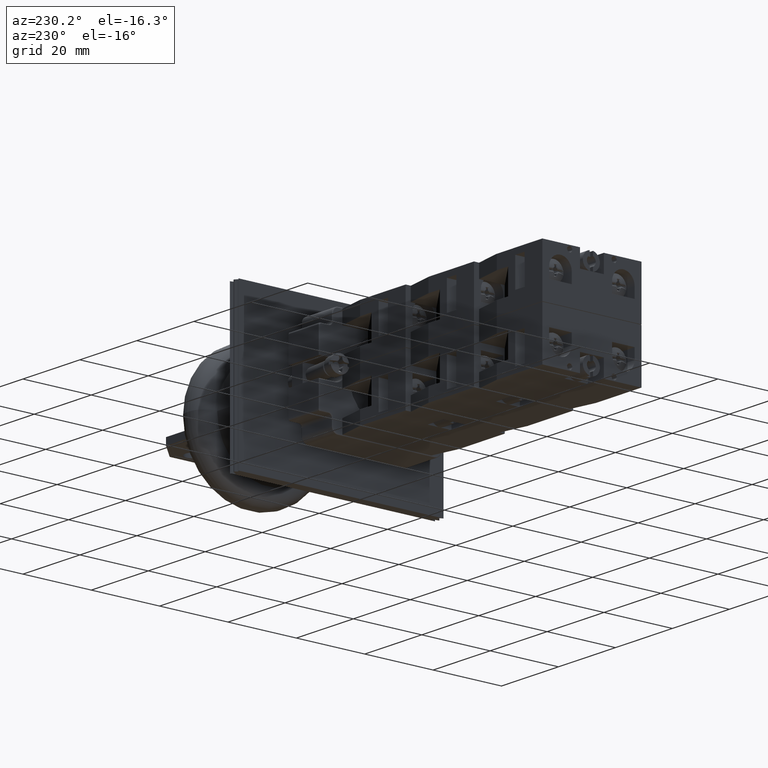
[diagram: clean part render]
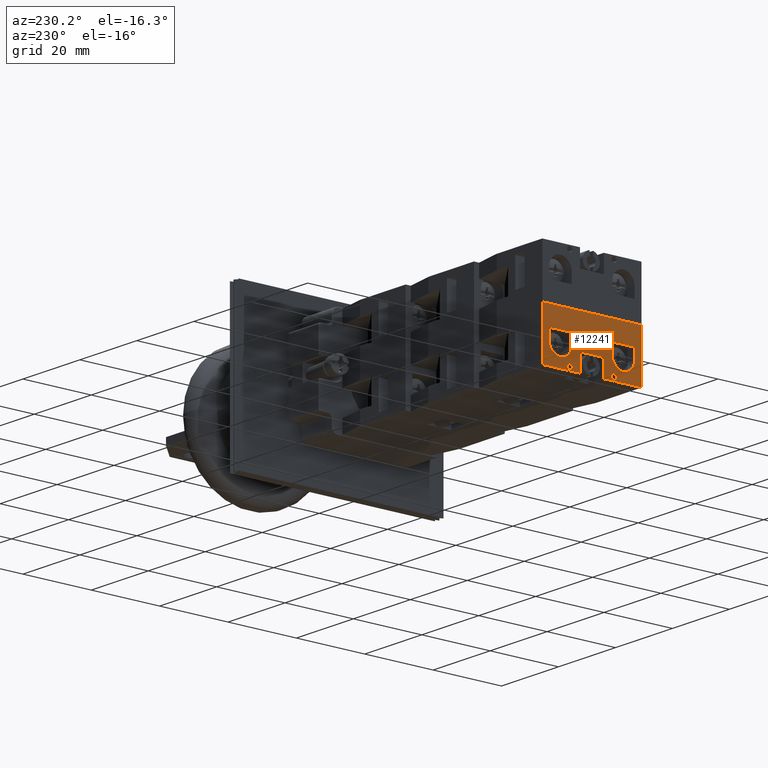
[diagram: same view with one face highlighted and labeled with its STEP entity id]
A machine part, auxiliary view. The second image highlights one B-rep face of the part: STEP entity #12241.
In plain terms, the highlighted planar face has unit normal (-1, 0, 0).
Its self-contained STEP definition (entity closure, byte-faithful):
#10643=CARTESIAN_POINT('',(-44.936741828918471,23.797073323279623,14.699999999999999));
#10644=VERTEX_POINT('',#10643);
#10651=CARTESIAN_POINT('',(-44.936741828918471,23.797073323279623,0.0));
#10652=VERTEX_POINT('',#10651);
#10653=CARTESIAN_POINT('',(-44.936741828918471,23.797073323279623,0.0));
#10654=DIRECTION('',(0.0,0.0,1.0));
#10655=VECTOR('',#10654,14.699999999999999);
#10656=LINE('',#10653,#10655);
#10657=EDGE_CURVE('',#10652,#10644,#10656,.T.);
#11626=CARTESIAN_POINT('',(-36.186741828918457,23.797073323279623,13.700000000000001));
#11627=VERTEX_POINT('',#11626);
#11628=CARTESIAN_POINT('',(-36.936741828918457,23.797073323279623,13.700000000000001));
#11629=DIRECTION('',(0.0,-1.0,0.0));
#11630=DIRECTION('',(-1.0,0.0,0.0));
#11631=AXIS2_PLACEMENT_3D('',#11628,#11629,#11630);
#11632=CIRCLE('',#11631,0.750000000000000);
#11633=EDGE_CURVE('',#11627,#11627,#11632,.T.);
#11663=CARTESIAN_POINT('',(-23.186741828918453,23.797073323279626,13.700000000000001));
#11664=VERTEX_POINT('',#11663);
#11665=CARTESIAN_POINT('',(-23.936741828918457,23.797073323279623,13.700000000000001));
#11666=DIRECTION('',(0.0,-1.0,0.0));
#11667=DIRECTION('',(-1.0,0.0,0.0));
#11668=AXIS2_PLACEMENT_3D('',#11665,#11666,#11667);
#11669=CIRCLE('',#11668,0.750000000000000);
#11670=EDGE_CURVE('',#11664,#11664,#11669,.T.);
#11738=CARTESIAN_POINT('',(-24.536741828918480,23.797073323279633,5.600000000000000));
#11739=VERTEX_POINT('',#11738);
#11746=CARTESIAN_POINT('',(-24.536741828918473,23.797073323279633,8.600000000000000));
#11747=VERTEX_POINT('',#11746);
#11748=CARTESIAN_POINT('',(-24.536741828918473,23.797073323279633,8.600000000000000));
#11749=DIRECTION('',(0.0,0.0,-1.0));
#11750=VECTOR('',#11749,3.0);
#11751=LINE('',#11748,#11750);
#11752=EDGE_CURVE('',#11747,#11739,#11751,.T.);
#11769=CARTESIAN_POINT('',(-17.936741828918478,23.797073323279641,5.600000000000000));
#11770=VERTEX_POINT('',#11769);
#11777=CARTESIAN_POINT('',(-24.536741828918480,23.797073323279633,5.600000000000000));
#11778=DIRECTION('',(1.0,0.0,0.0));
#11779=VECTOR('',#11778,6.600000000000001);
#11780=LINE('',#11777,#11779);
#11781=EDGE_CURVE('',#11739,#11770,#11780,.T.);
#11834=CARTESIAN_POINT('',(-36.336741828918470,23.797073323279623,8.600000000000000));
#11835=VERTEX_POINT('',#11834);
#11842=CARTESIAN_POINT('',(-36.336741828918463,23.797073323279623,5.600000000000000));
#11843=VERTEX_POINT('',#11842);
#11844=CARTESIAN_POINT('',(-36.336741828918463,23.797073323279623,5.600000000000000));
#11845=DIRECTION('',(0.0,0.0,1.0));
#11846=VECTOR('',#11845,3.0);
#11847=LINE('',#11844,#11846);
#11848=EDGE_CURVE('',#11843,#11835,#11847,.T.);
#11865=CARTESIAN_POINT('',(-42.936741828918471,23.797073323279623,8.600000000000000));
#11866=VERTEX_POINT('',#11865);
#11873=CARTESIAN_POINT('',(-39.636741828918467,23.797073323279623,8.600000000000000));
#11874=DIRECTION('',(0.0,-1.0,0.0));
#11875=DIRECTION('',(1.0,0.0,0.0));
#11876=AXIS2_PLACEMENT_3D('',#11873,#11874,#11875);
#11877=CIRCLE('',#11876,3.300000000000001);
#11878=EDGE_CURVE('',#11835,#11866,#11877,.T.);
#11890=CARTESIAN_POINT('',(-17.936741828918478,23.797073323279641,8.600000000000000));
#11891=VERTEX_POINT('',#11890);
#11898=CARTESIAN_POINT('',(-17.936741828918478,23.797073323279641,5.600000000000000));
#11899=DIRECTION('',(0.0,0.0,1.0));
#11900=VECTOR('',#11899,3.0);
#11901=LINE('',#11898,#11900);
#11902=EDGE_CURVE('',#11770,#11891,#11901,.T.);
#11936=CARTESIAN_POINT('',(-21.236741828918476,23.797073323279648,8.600000000000000));
#11937=DIRECTION('',(0.0,-1.0,0.0));
#11938=DIRECTION('',(-1.0,0.0,0.0));
#11939=AXIS2_PLACEMENT_3D('',#11936,#11937,#11938);
#11940=CIRCLE('',#11939,3.300000000000001);
#11941=EDGE_CURVE('',#11891,#11747,#11940,.T.);
#11972=CARTESIAN_POINT('',(-42.936741828918471,23.797073323279623,5.600000000000000));
#11973=VERTEX_POINT('',#11972);
#11980=CARTESIAN_POINT('',(-42.936741828918471,23.797073323279623,8.600000000000000));
#11981=DIRECTION('',(0.0,0.0,-1.0));
#11982=VECTOR('',#11981,3.0);
#11983=LINE('',#11980,#11982);
#11984=EDGE_CURVE('',#11866,#11973,#11983,.T.);
#11997=CARTESIAN_POINT('',(-42.936741828918471,23.797073323279623,5.600000000000000));
#11998=DIRECTION('',(1.0,0.0,0.0));
#11999=VECTOR('',#11998,6.600000000000009);
#12000=LINE('',#11997,#11999);
#12001=EDGE_CURVE('',#11973,#11843,#12000,.T.);
#12077=CARTESIAN_POINT('',(-26.936741828918468,23.797073323279626,14.699999999999999));
#12078=VERTEX_POINT('',#12077);
#12085=CARTESIAN_POINT('',(-26.936741828918464,23.797073323279626,9.700000000000001));
#12086=VERTEX_POINT('',#12085);
#12087=CARTESIAN_POINT('',(-26.936741828918464,23.797073323279626,9.700000000000001));
#12088=DIRECTION('',(0.0,0.0,1.0));
#12089=VECTOR('',#12088,4.999999999999998);
#12090=LINE('',#12087,#12089);
#12091=EDGE_CURVE('',#12086,#12078,#12090,.T.);
#12116=CARTESIAN_POINT('',(-33.936741828918464,23.797073323279623,9.700000000000001));
#12117=VERTEX_POINT('',#12116);
#12118=CARTESIAN_POINT('',(-33.936741828918464,23.797073323279623,9.700000000000001));
#12119=DIRECTION('',(1.0,0.0,0.0));
#12120=VECTOR('',#12119,7.0);
#12121=LINE('',#12118,#12120);
#12122=EDGE_CURVE('',#12117,#12086,#12121,.T.);
#12147=CARTESIAN_POINT('',(-33.936741828918464,23.797073323279623,14.699999999999999));
#12148=VERTEX_POINT('',#12147);
#12149=CARTESIAN_POINT('',(-33.936741828918464,23.797073323279623,14.699999999999999));
#12150=DIRECTION('',(0.0,0.0,-1.0));
#12151=VECTOR('',#12150,4.999999999999998);
#12152=LINE('',#12149,#12151);
#12153=EDGE_CURVE('',#12148,#12117,#12152,.T.);
#12184=CARTESIAN_POINT('',(-44.936741828918471,23.797073323279623,0.0));
#12185=DIRECTION('',(0.0,1.0,0.0));
#12186=DIRECTION('',(0.0,0.0,1.0));
#12187=AXIS2_PLACEMENT_3D('',#12184,#12185,#12186);
#12188=PLANE('',#12187);
#12189=ORIENTED_EDGE('',*,*,#12153,.T.);
#12190=ORIENTED_EDGE('',*,*,#12122,.T.);
#12191=ORIENTED_EDGE('',*,*,#12091,.T.);
#12192=CARTESIAN_POINT('',(-15.936741828918466,23.797073323279626,14.699999999999999));
#12193=VERTEX_POINT('',#12192);
#12194=CARTESIAN_POINT('',(-26.936741828918468,23.797073323279626,14.699999999999999));
#12195=DIRECTION('',(1.0,0.0,0.0));
#12196=VECTOR('',#12195,11.000000000000002);
#12197=LINE('',#12194,#12196);
#12198=EDGE_CURVE('',#12078,#12193,#12197,.T.);
#12199=ORIENTED_EDGE('',*,*,#12198,.T.);
#12200=CARTESIAN_POINT('',(-15.936741828918466,23.797073323279626,0.0));
#12201=VERTEX_POINT('',#12200);
#12202=CARTESIAN_POINT('',(-15.936741828918466,23.797073323279626,0.0));
#12203=DIRECTION('',(0.0,0.0,1.0));
#12204=VECTOR('',#12203,14.699999999999999);
#12205=LINE('',#12202,#12204);
#12206=EDGE_CURVE('',#12201,#12193,#12205,.T.);
#12207=ORIENTED_EDGE('',*,*,#12206,.F.);
#12208=CARTESIAN_POINT('',(-44.936741828918471,23.797073323279623,0.0));
#12209=DIRECTION('',(1.0,0.0,0.0));
#12210=VECTOR('',#12209,29.000000000000007);
#12211=LINE('',#12208,#12210);
#12212=EDGE_CURVE('',#10652,#12201,#12211,.T.);
#12213=ORIENTED_EDGE('',*,*,#12212,.F.);
#12214=ORIENTED_EDGE('',*,*,#10657,.T.);
#12215=CARTESIAN_POINT('',(-44.936741828918471,23.797073323279623,14.699999999999999));
#12216=DIRECTION('',(1.0,0.0,0.0));
#12217=VECTOR('',#12216,11.000000000000007);
#12218=LINE('',#12215,#12217);
#12219=EDGE_CURVE('',#10644,#12148,#12218,.T.);
#12220=ORIENTED_EDGE('',*,*,#12219,.T.);
#12221=EDGE_LOOP('',(#12189,#12190,#12191,#12199,#12207,#12213,#12214,#12220));
#12222=FACE_OUTER_BOUND('',#12221,.T.);
#12223=ORIENTED_EDGE('',*,*,#11633,.T.);
#12224=EDGE_LOOP('',(#12223));
#12225=FACE_BOUND('',#12224,.T.);
#12226=ORIENTED_EDGE('',*,*,#11670,.T.);
#12227=EDGE_LOOP('',(#12226));
#12228=FACE_BOUND('',#12227,.T.);
#12229=ORIENTED_EDGE('',*,*,#11902,.T.);
#12230=ORIENTED_EDGE('',*,*,#11941,.T.);
#12231=ORIENTED_EDGE('',*,*,#11752,.T.);
#12232=ORIENTED_EDGE('',*,*,#11781,.T.);
#12233=EDGE_LOOP('',(#12229,#12230,#12231,#12232));
#12234=FACE_BOUND('',#12233,.T.);
#12235=ORIENTED_EDGE('',*,*,#11984,.T.);
#12236=ORIENTED_EDGE('',*,*,#12001,.T.);
#12237=ORIENTED_EDGE('',*,*,#11848,.T.);
#12238=ORIENTED_EDGE('',*,*,#11878,.T.);
#12239=EDGE_LOOP('',(#12235,#12236,#12237,#12238));
#12240=FACE_BOUND('',#12239,.T.);
#12241=ADVANCED_FACE('',(#12222,#12225,#12228,#12234,#12240),#12188,.T.);